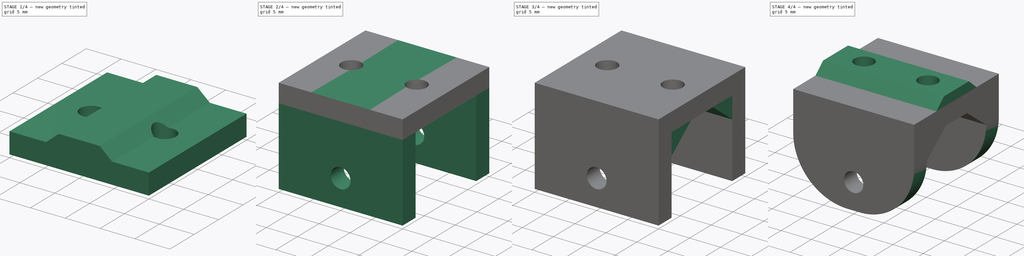
[diagram: build sequence overview — one tinted view per stage of 4, left to right]
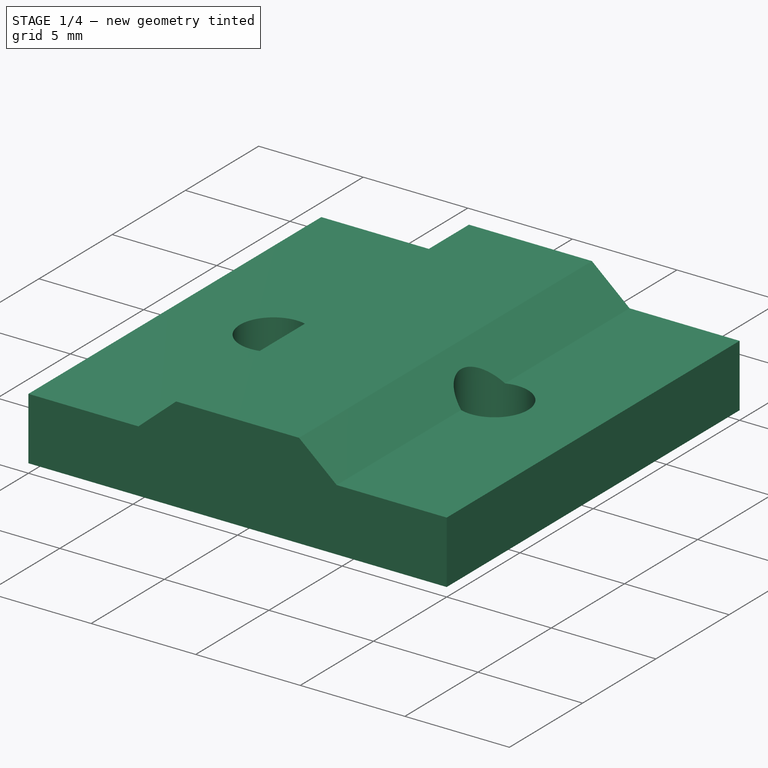
[diagram: stage 1 of 4 — iso view after this stage's code; geometry added in this stage tinted green]
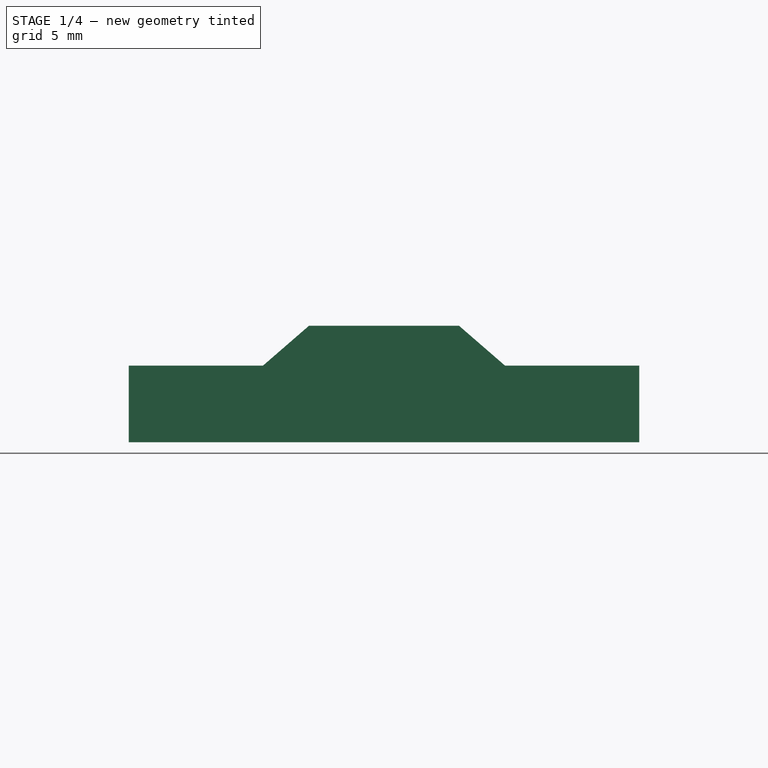
[diagram: stage 1 of 4 — front view after this stage's code; geometry added in this stage tinted green]
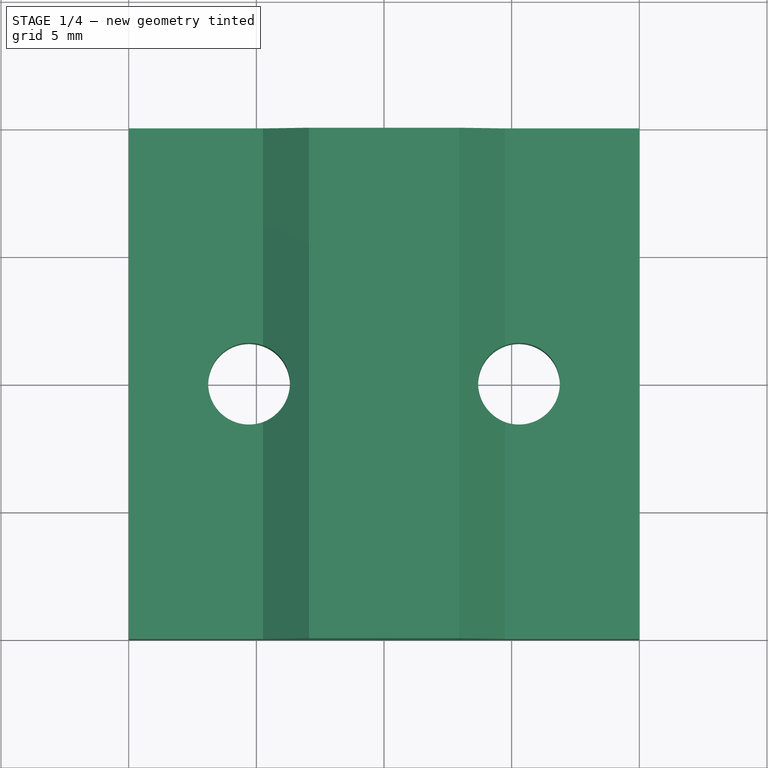
[diagram: stage 1 of 4 — top view after this stage's code; geometry added in this stage tinted green]
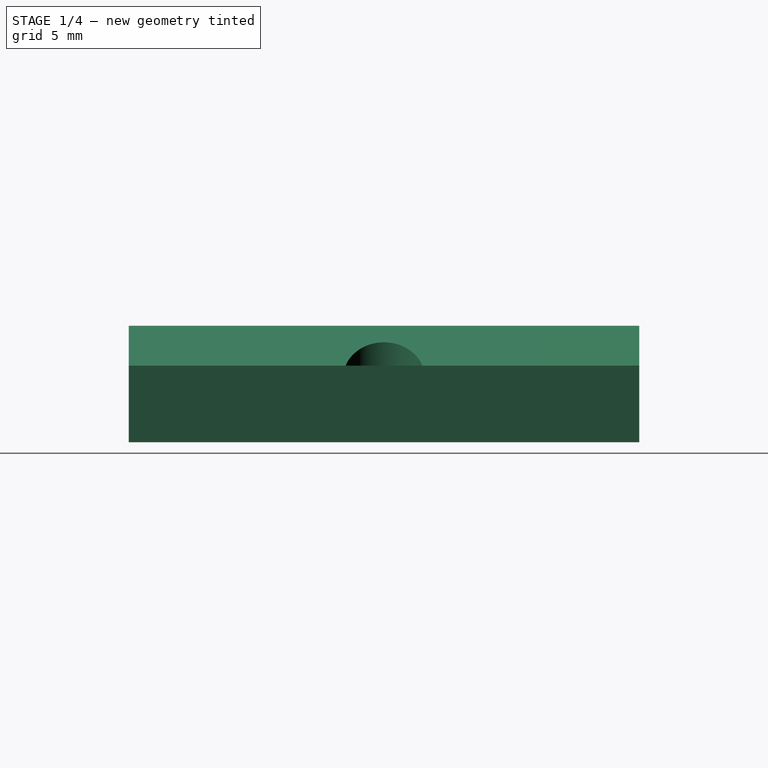
[diagram: stage 1 of 4 — right view after this stage's code; geometry added in this stage tinted green]
FCSTD DOCUMENT  (FreeCAD 0.20R29603 (Git))
Label: suporte-20-P2-amortecedor-lateral
License: All rights reserved
LicenseURL: http://en.wikipedia.org/wiki/All_rights_reserved
objects: Sketcher::SketchObject×10, PartDesign::Pocket×6, PartDesign::Pad×5, PartDesign::Fillet×1, PartDesign::Body×1
note: 35 computed .brp shape members not serialized (recipe doc carries the construction recipe); baked Part::Feature solids carry a one-line shape summary decoded from their .brp

FEATURE [Sketcher::SketchObject] Sketch
  FullyConstrained = true
  MapMode = 5
  Support = -> [XY_Plane]
  sketch-geometry (13):
    g0: LineSegment StartX=10 StartY=10 StartZ=0 EndX=-10 EndY=10 EndZ=0
    g1: LineSegment StartX=-10 StartY=10 StartZ=0 EndX=-10 EndY=-10 EndZ=0
    g2: LineSegment StartX=-10 StartY=-10 StartZ=0 EndX=10 EndY=-10 EndZ=0
    g3: LineSegment StartX=10 StartY=-10 StartZ=0 EndX=10 EndY=10 EndZ=0
    g4: Circle CenterX=0 CenterY=0 CenterZ=0 NormalX=0 NormalY=0 NormalZ=1 AngleXU=0 Radius=14.1421
    g5: Circle CenterX=0 CenterY=-5.286 CenterZ=0 NormalX=0 NormalY=0 NormalZ=1 AngleXU=0 Radius=1.6
    g6: Circle CenterX=0 CenterY=5.286 CenterZ=0 NormalX=0 NormalY=0 NormalZ=1 AngleXU=0 Radius=1.6
    g7: LineSegment StartX=0 StartY=5.286 StartZ=0 EndX=0 EndY=0 EndZ=0
    g8: LineSegment StartX=0 StartY=-5.286 StartZ=0 EndX=0 EndY=0 EndZ=0
    g9: Circle CenterX=-5.286 CenterY=0 CenterZ=0 NormalX=0 NormalY=0 NormalZ=1 AngleXU=0 Radius=1.6
    g10: Circle CenterX=5.286 CenterY=0 CenterZ=0 NormalX=0 NormalY=0 NormalZ=1 AngleXU=0 Radius=1.6
    g11: LineSegment StartX=-5.286 StartY=0 StartZ=0 EndX=0 EndY=0 EndZ=0
    g12: LineSegment StartX=5.286 StartY=0 StartZ=0 EndX=0 EndY=0 EndZ=0
  constraints (34):
    c: Coincident(g0,g1)
    c: Coincident(g1,g2)
    c: Coincident(g2,g3)
    c: Coincident(g3,g0)
    c: Equal(g0,g1)
    c: Equal(g0,g2)
    c: Equal(g0,g3)
    c: PointOnObject(g0,g4)
    c: PointOnObject(g1,g4)
    c: PointOnObject(g2,g4)
    c: PointOnObject(g3,g4)
    c: Coincident(g4,g-1)
    c: Horizontal(g0)
    c: DistanceY(g1,g1) = 20
    c: PointOnObject(g6,g-2)
    c: PointOnObject(g5,g-2)
    c: Coincident(g7,g6)
    c: Coincident(g8,g5)
    c: Coincident(g8,g7)
    c: Equal(g7,g8)
    c: Coincident(g7,g4)
    c: Equal(g6,g5)
    c: Radius(g6) = 1.6
    c: DistanceY(g5,g6) = 10.572
    c: Coincident(g11,g4)
    c: Coincident(g12,g10)
    c: Coincident(g12,g4)
    c: Coincident(g11,g9)
    c: Equal(g11,g12)
    c: Equal(g9,g10)
    c: Equal(g10,g6)
    c: Equal(g12,g7)
    c: Horizontal(g12)
    c: Horizontal(g11)
FEATURE [PartDesign::Pad] Pad
  Direction = (0,0,1)
  Length = 3
  Length2 = 10
  Profile = -> Sketch
  ReferenceAxis = -> Sketch [N_Axis]
  Type = 0
FEATURE [Sketcher::SketchObject] Sketch005
  FullyConstrained = false
  MapMode = 5
  Placement = pos=(0,10,0) rot=(0,0.707107,0.707107;3.14159rad)
  sketch-geometry (5):
    g0: LineSegment StartX=-4.25 StartY=0 StartZ=0 EndX=4.25 EndY=0 EndZ=0
    g1: LineSegment StartX=-4.25 StartY=0 StartZ=0 EndX=-4.25 EndY=-8.25 EndZ=0
    g2: LineSegment StartX=4.25 StartY=0 StartZ=0 EndX=4.25 EndY=-8.25 EndZ=0
    g3: ArcOfCircle CenterX=0 CenterY=-8.25 CenterZ=0 NormalX=0 NormalY=0 NormalZ=1 AngleXU=0 Radius=4.25 StartAngle=3.14159 EndAngle=6.28319
    g4: Circle CenterX=0 CenterY=-8.25 CenterZ=0 NormalX=0 NormalY=0 NormalZ=1 AngleXU=0 Radius=1.6
  constraints (12):
    c: Horizontal(g0)
    c: Vertical(g1)
    c: PointOnObject(g3,g-2)
    c: Tangent(g1,g3) = -1.5708
    c: Tangent(g3,g2) = 1.5708
    c: Vertical(g2)
    c: Coincident(g1,g0)
    c: Coincident(g2,g0)
    c: PointOnObject(g-1,g0)
    c: DistanceX(g0,g0) = 8.5
    c: Coincident(g4,g3)
    c: Radius(g4) = 1.6
FEATURE [Sketcher::SketchObject] Sketch001
  ExternalGeometry = -> [Pad]
  FullyConstrained = true
  MapMode = 5
  Placement = pos=(0,10,0) rot=(0,0.707107,0.707107;3.14159rad)
  Support = -> [Pad]
  sketch-geometry (5):
    g0: LineSegment StartX=0 StartY=3 StartZ=0 EndX=-4.74 EndY=3 EndZ=0
    g1: LineSegment StartX=-4.74 StartY=3 StartZ=0 EndX=-2.94 EndY=4.56 EndZ=0
    g2: LineSegment StartX=-2.94 StartY=4.56 StartZ=0 EndX=2.94 EndY=4.56 EndZ=0
    g3: LineSegment StartX=2.94 StartY=4.56 StartZ=0 EndX=4.74 EndY=3 EndZ=0
    g4: LineSegment StartX=4.74 StartY=3 StartZ=0 EndX=0 EndY=3 EndZ=0
  constraints (15):
    c: Horizontal(g0)
    c: Coincident(g0,g1)
    c: Coincident(g1,g2)
    c: Horizontal(g2)
    c: Coincident(g2,g3)
    c: Coincident(g3,g4)
    c: Coincident(g4,g0)
    c: Horizontal(g4)
    c: PointOnObject(g0,g-2)
    c: PointOnObject(g0,g-3)
    c: Equal(g3,g1)
    c: Equal(g0,g4)
    c: DistanceX(g0,g3) = 9.48
    c: DistanceX(g2,g2) = 5.88
    c: DistanceY(g3,g2) = 1.56
FEATURE [PartDesign::Pad] Pad001
  BaseFeature = -> Pad
  Direction = (0,1,-2e-16)
  Length = 10
  Length2 = 10
  Profile = -> Sketch001
  ReferenceAxis = -> Sketch001 [N_Axis]
  Reversed = true
  Type = 3
  UpToFace = -> Pad [Face3]
FEATURE [Sketcher::SketchObject] Sketch002
  ExternalGeometry = -> [Pad001]
  FullyConstrained = true
  MapMode = 5
  Placement = pos=(0,0,0) rot=(1,0,0;3.14159rad)
  Support = -> [Pad001]
  sketch-geometry (2):
    g0: Circle CenterX=-5.286 CenterY=0 CenterZ=0 NormalX=0 NormalY=0 NormalZ=1 AngleXU=0 Radius=1.6
    g1: Circle CenterX=5.286 CenterY=0 CenterZ=0 NormalX=0 NormalY=0 NormalZ=1 AngleXU=0 Radius=1.6
  constraints (4):
    c: Coincident(g0,g-3)
    c: Equal(g1,g-4)
    c: Equal(g-4,g0)
    c: Coincident(g1,g-4)
FEATURE [PartDesign::Pocket] Pocket
  BaseFeature = -> Pad001
  Direction = (0,0,1)
  Length = 5
  Length2 = 5
  Profile = -> Sketch002
  ReferenceAxis = -> Sketch002 [N_Axis]
  Type = 1
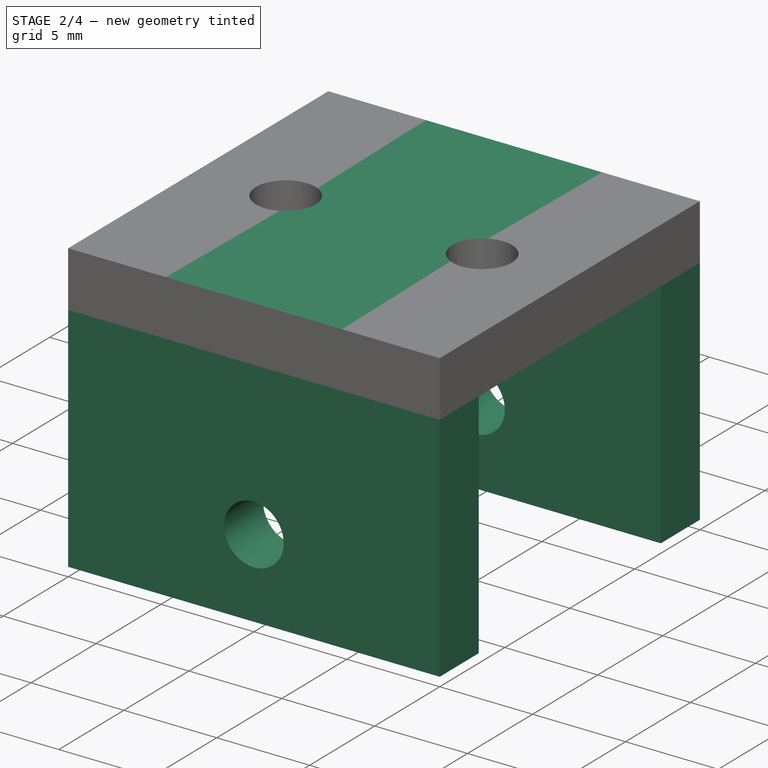
[diagram: stage 2 of 4 — iso view after this stage's code; geometry added in this stage tinted green]
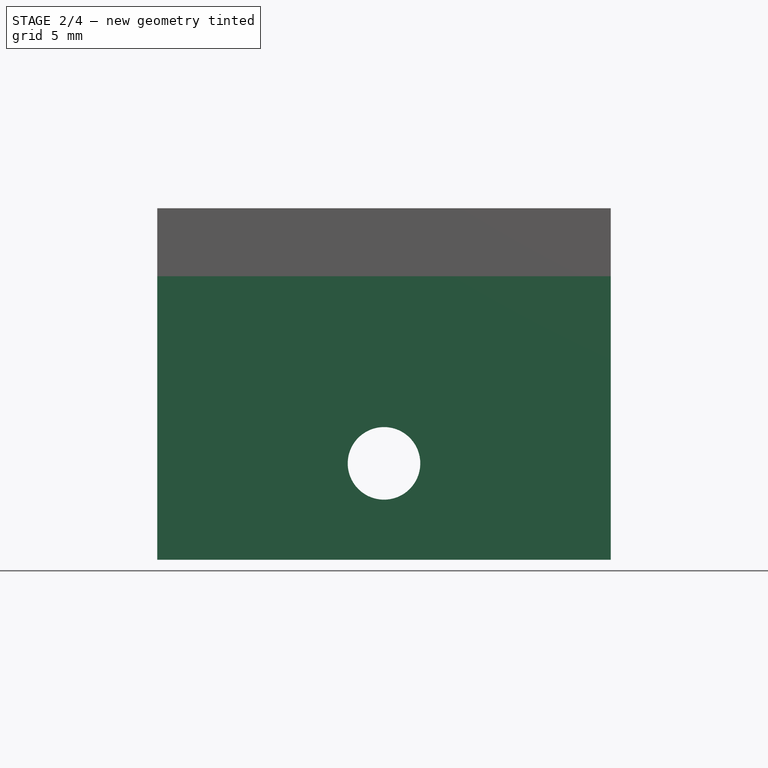
[diagram: stage 2 of 4 — front view after this stage's code; geometry added in this stage tinted green]
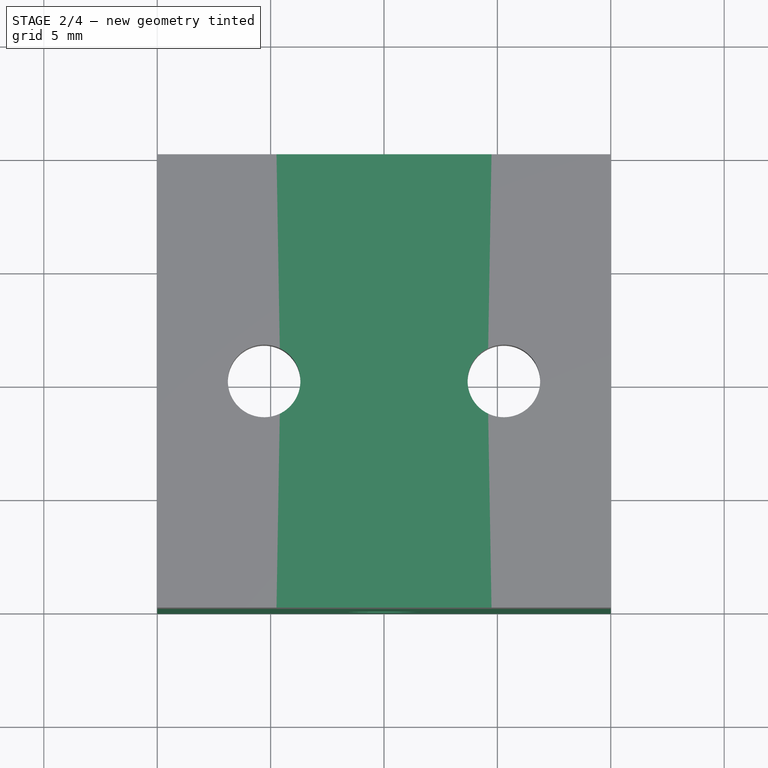
[diagram: stage 2 of 4 — top view after this stage's code; geometry added in this stage tinted green]
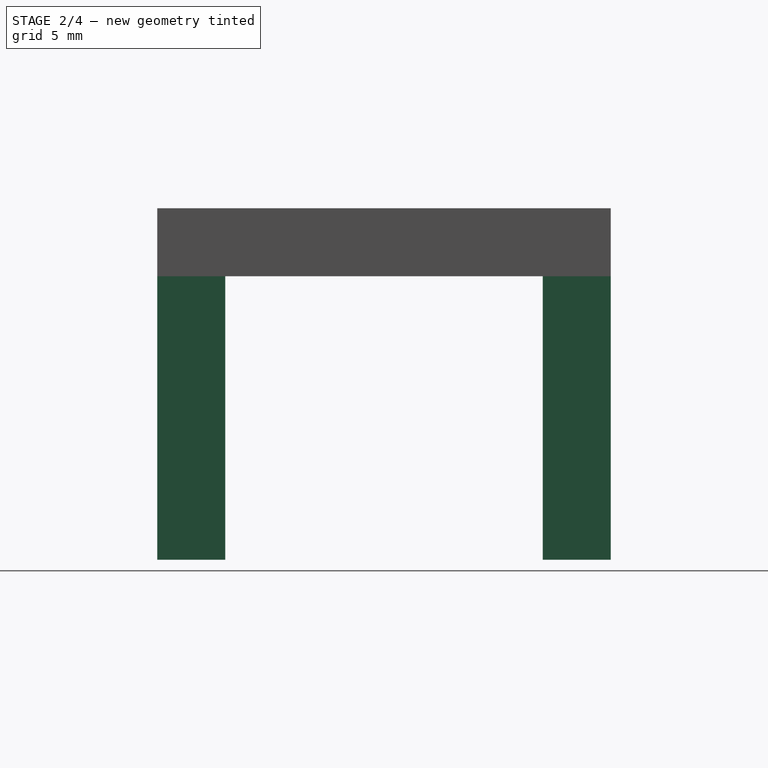
[diagram: stage 2 of 4 — right view after this stage's code; geometry added in this stage tinted green]
FEATURE [Sketcher::SketchObject] Sketch003
  ExternalGeometry = -> [Pocket]
  FullyConstrained = true
  MapMode = 5
  Placement = pos=(0,0,0) rot=(1,0,0;3.14159rad)
  Support = -> [Pocket]
  sketch-geometry (15):
    g0: LineSegment StartX=4 StartY=2.3 StartZ=0 EndX=-4 EndY=2.3 EndZ=0
    g1: LineSegment StartX=-4 StartY=2.3 StartZ=0 EndX=-4 EndY=-2.3 EndZ=0
    g2: LineSegment StartX=-4 StartY=-2.3 StartZ=0 EndX=4 EndY=-2.3 EndZ=0
    g3: LineSegment StartX=4 StartY=-2.3 StartZ=0 EndX=4 EndY=2.3 EndZ=0
    g4: LineSegment StartX=4 StartY=2.3 StartZ=0 EndX=-4 EndY=-2.3 EndZ=0
    g5: LineSegment StartX=-4 StartY=2.3 StartZ=0 EndX=4 EndY=-2.3 EndZ=0
    g6: Circle CenterX=-5.286 CenterY=0 CenterZ=0 NormalX=0 NormalY=0 NormalZ=1 AngleXU=0 Radius=2.75
    g7: LineSegment StartX=-10 StartY=10 StartZ=0 EndX=10 EndY=10 EndZ=0
    g8: LineSegment StartX=10 StartY=10 StartZ=0 EndX=10 EndY=7 EndZ=0
    g9: LineSegment StartX=10 StartY=7 StartZ=0 EndX=-10 EndY=7 EndZ=0
    g10: LineSegment StartX=-10 StartY=7 StartZ=0 EndX=-10 EndY=10 EndZ=0
    g11: LineSegment StartX=-10 StartY=-7 StartZ=0 EndX=10 EndY=-7 EndZ=0
    g12: LineSegment StartX=10 StartY=-7 StartZ=0 EndX=10 EndY=-10 EndZ=0
    g13: LineSegment StartX=10 StartY=-10 StartZ=0 EndX=-10 EndY=-10 EndZ=0
    g14: LineSegment StartX=-10 StartY=-10 StartZ=0 EndX=-10 EndY=-7 EndZ=0
  constraints (40):
    c: Coincident(g0,g1)
    c: Coincident(g1,g2)
    c: Coincident(g2,g3)
    c: Coincident(g3,g0)
    c: Horizontal(g0)
    c: Horizontal(g2)
    c: Vertical(g1)
    c: Vertical(g3)
    c: DistanceY(g1,g1) = 4.6
    c: DistanceX(g0,g0) = 8
    c: Coincident(g4,g0)
    c: Coincident(g4,g1)
    c: Coincident(g5,g0)
    c: Coincident(g5,g2)
    c: PointOnObject(g-1,g5)
    c: PointOnObject(g-1,g4)
    c: Coincident(g6,g-3)
    c: Diameter(g6) = 5.5
    c: Coincident(g7,g8)
    c: Coincident(g8,g9)
    c: Coincident(g9,g10)
    c: Coincident(g10,g7)
    c: Horizontal(g7)
    c: Horizontal(g9)
    c: Vertical(g8)
    c: Vertical(g10)
    c: Coincident(g11,g12)
    c: Coincident(g12,g13)
    c: Coincident(g13,g14)
    c: Coincident(g14,g11)
    c: Horizontal(g11)
    c: Horizontal(g13)
    c: Vertical(g12)
    c: Vertical(g14)
    c: Coincident(g7,g-5)
    c: Vertical(g9,g-5)
    c: Coincident(g13,g-4)
    c: Vertical(g11,g-4)
    c: Equal(g14,g10)
    c: DistanceY(g8,g8) = 3
FEATURE [PartDesign::Pad] Pad002
  BaseFeature = -> Pocket
  Direction = (0,0,-1)
  Length = 12.5
  Length2 = 10
  Profile = -> Sketch003
  ReferenceAxis = -> Sketch003 [N_Axis]
  Type = 0
FEATURE [PartDesign::Pocket] Pocket002
  BaseFeature = -> Pad002
  Direction = (0,-1,2e-16)
  Length = 5
  Length2 = 5
  Profile = -> Sketch005
  ReferenceAxis = -> Sketch005 [N_Axis]
  Type = 1
FEATURE [PartDesign::Pocket] Pocket003
  BaseFeature = -> Pocket002
  Direction = (0,1,0)
  Length = 5
  Length2 = 5
  Profile = -> Pocket002 [Face22]
  Type = 1
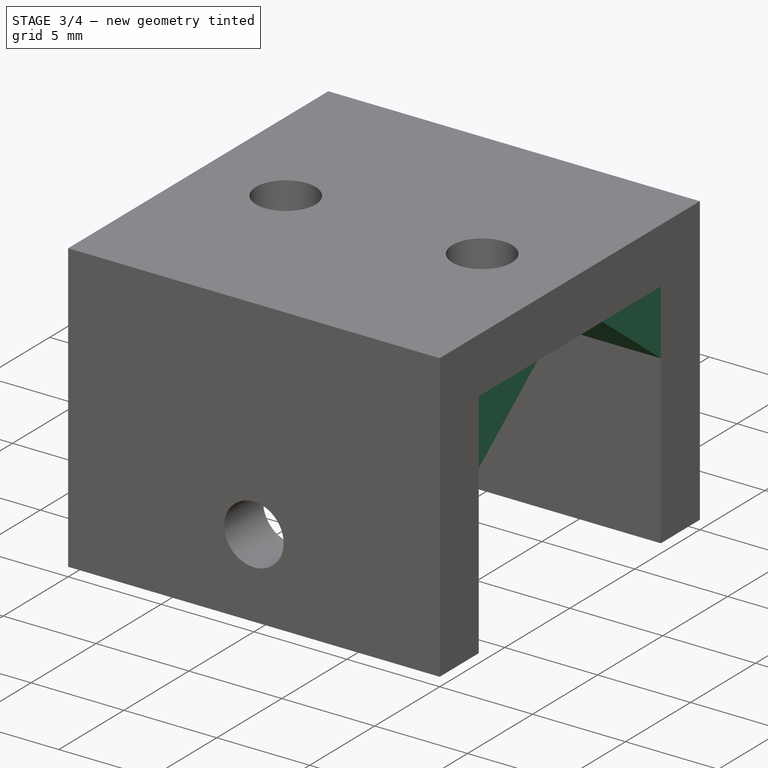
[diagram: stage 3 of 4 — iso view after this stage's code; geometry added in this stage tinted green]
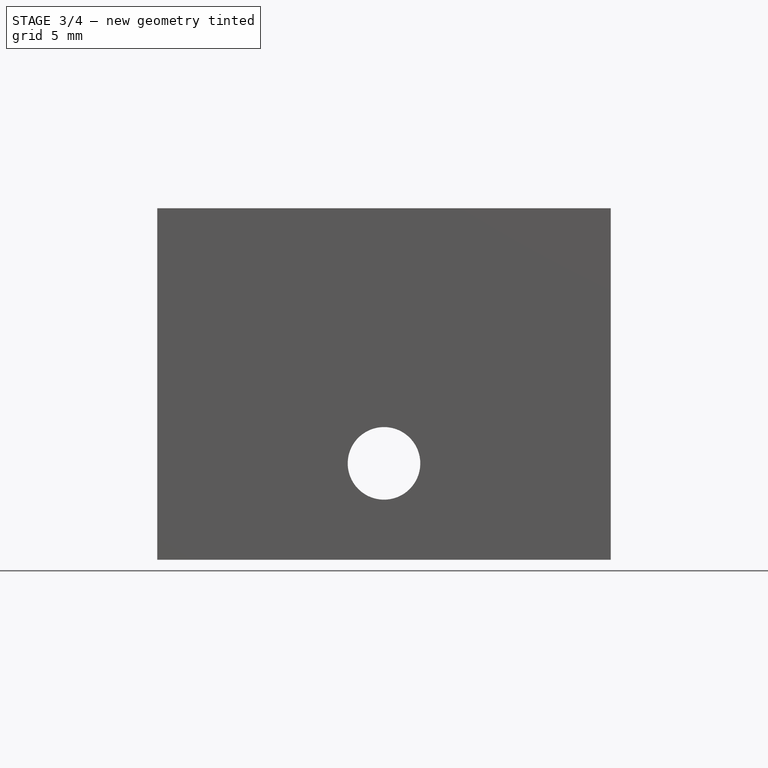
[diagram: stage 3 of 4 — front view after this stage's code; geometry added in this stage tinted green]
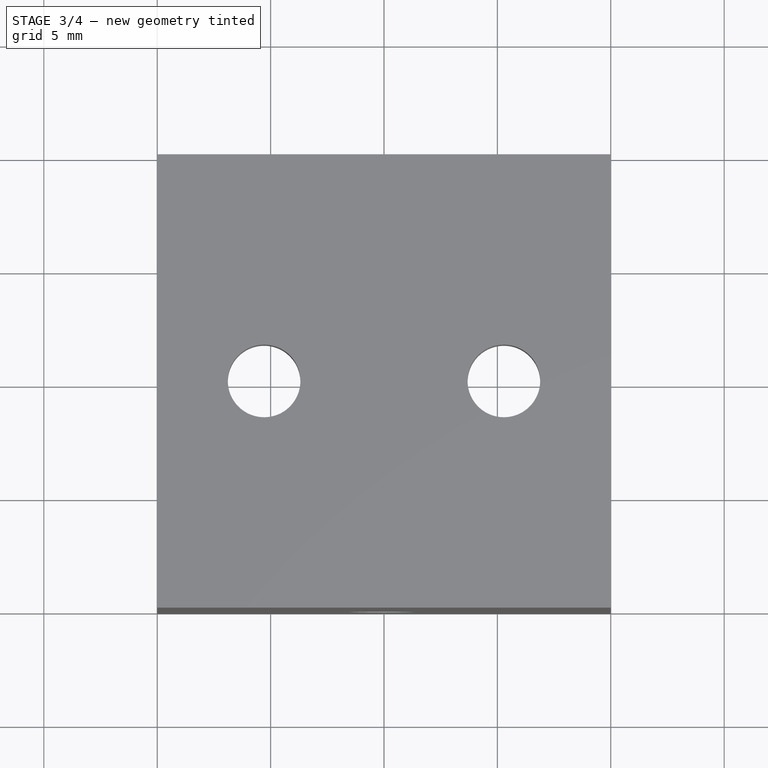
[diagram: stage 3 of 4 — top view after this stage's code; geometry added in this stage tinted green]
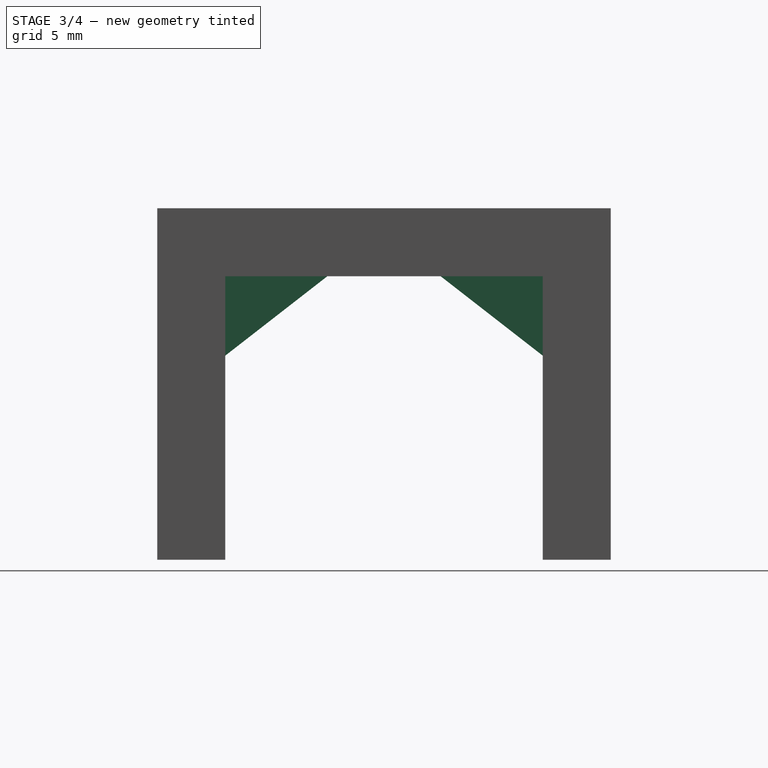
[diagram: stage 3 of 4 — right view after this stage's code; geometry added in this stage tinted green]
FEATURE [Sketcher::SketchObject] Sketch006
  ExternalGeometry = -> [Pocket003]
  FullyConstrained = true
  MapMode = 5
  Placement = pos=(0,0,0) rot=(1,0,0;3.14159rad)
  Support = -> [Pocket003]
  sketch-geometry (8):
    g0: LineSegment StartX=-10 StartY=7 StartZ=0 EndX=10 EndY=7 EndZ=0
    g1: LineSegment StartX=10 StartY=7 StartZ=0 EndX=10 EndY=2.5 EndZ=0
    g2: LineSegment StartX=10 StartY=2.5 StartZ=0 EndX=-10 EndY=2.5 EndZ=0
    g3: LineSegment StartX=-10 StartY=2.5 StartZ=0 EndX=-10 EndY=7 EndZ=0
    g4: LineSegment StartX=-10 StartY=-7 StartZ=0 EndX=10 EndY=-7 EndZ=0
    g5: LineSegment StartX=10 StartY=-7 StartZ=0 EndX=10 EndY=-2.5 EndZ=0
    g6: LineSegment StartX=10 StartY=-2.5 StartZ=0 EndX=-10 EndY=-2.5 EndZ=0
    g7: LineSegment StartX=-10 StartY=-2.5 StartZ=0 EndX=-10 EndY=-7 EndZ=0
  constraints (22):
    c: Coincident(g0,g1)
    c: Coincident(g1,g2)
    c: Coincident(g2,g3)
    c: Coincident(g3,g0)
    c: Horizontal(g0)
    c: Horizontal(g2)
    c: Vertical(g1)
    c: Vertical(g3)
    c: Coincident(g0,g-3)
    c: Coincident(g4,g5)
    c: Coincident(g5,g6)
    c: Coincident(g6,g7)
    c: Coincident(g7,g4)
    c: Horizontal(g4)
    c: Horizontal(g6)
    c: Vertical(g5)
    c: Vertical(g7)
    c: Coincident(g4,g-4)
    c: Vertical(g4,g-4)
    c: Vertical(g-4,g1)
    c: Equal(g3,g7)
    c: DistanceY(g3,g3) = 4.5
FEATURE [PartDesign::Pad] Pad003
  BaseFeature = -> Pocket003
  Direction = (0,0,-1)
  Length = 3.5
  Length2 = 10
  Profile = -> Sketch006
  ReferenceAxis = -> Sketch006 [N_Axis]
  Type = 0
FEATURE [Sketcher::SketchObject] Sketch007
  ExternalGeometry = -> [Pad003]
  FullyConstrained = true
  MapMode = 5
  Placement = pos=(-10,0,0) rot=(0.57735,-0.57735,-0.57735;2.0944rad)
  Support = -> [Pad003]
  sketch-geometry (6):
    g0: LineSegment StartX=-2.5 StartY=0 StartZ=0 EndX=-7 EndY=-3.5 EndZ=0
    g1: LineSegment StartX=-7 StartY=-3.5 StartZ=0 EndX=-2.5 EndY=-3.5 EndZ=0
    g2: LineSegment StartX=-2.5 StartY=-3.5 StartZ=0 EndX=-2.5 EndY=0 EndZ=0
    g3: LineSegment StartX=7 StartY=-3.5 StartZ=0 EndX=2.5 EndY=0 EndZ=0
    g4: LineSegment StartX=2.5 StartY=0 StartZ=0 EndX=2.5 EndY=-3.5 EndZ=0
    g5: LineSegment StartX=2.5 StartY=-3.5 StartZ=0 EndX=7 EndY=-3.5 EndZ=0
  constraints (12):
    c: Coincident(g0,g1)
    c: Coincident(g1,g2)
    c: Coincident(g2,g0)
    c: Coincident(g3,g4)
    c: Coincident(g4,g5)
    c: Coincident(g5,g3)
    c: Coincident(g3,g-4)
    c: Coincident(g4,g-4)
    c: Coincident(g3,g-3)
    c: Coincident(g1,g-6)
    c: Coincident(g0,g-5)
    c: Coincident(g0,g-6)
FEATURE [PartDesign::Pocket] Pocket004
  BaseFeature = -> Pad003
  Direction = (1,0,0)
  Length = 5
  Length2 = 5
  Profile = -> Sketch007
  ReferenceAxis = -> Sketch007 [N_Axis]
  Type = 1
FEATURE [Sketcher::SketchObject] Sketch008
  ExternalGeometry = -> [Pocket004]
  FullyConstrained = true
  MapMode = 5
  Placement = pos=(0,0,0) rot=(1,0,0;3.14159rad)
  Support = -> [Pocket004]
  sketch-geometry (2):
    g0: Circle CenterX=-5.286 CenterY=0 CenterZ=0 NormalX=0 NormalY=0 NormalZ=1 AngleXU=0 Radius=2.75
    g1: Circle CenterX=5.286 CenterY=0 CenterZ=0 NormalX=0 NormalY=0 NormalZ=1 AngleXU=0 Radius=2.75
  constraints (4):
    c: Coincident(g0,g-4)
    c: Coincident(g1,g-3)
    c: Equal(g1,g0)
    c: Diameter(g0) = 5.5
FEATURE [PartDesign::Pocket] Pocket005
  BaseFeature = -> Pocket004
  Direction = (0,0,1)
  Length = 5
  Length2 = 5
  Profile = -> Sketch008
  ReferenceAxis = -> Sketch008 [N_Axis]
  Reversed = true
  Type = 1
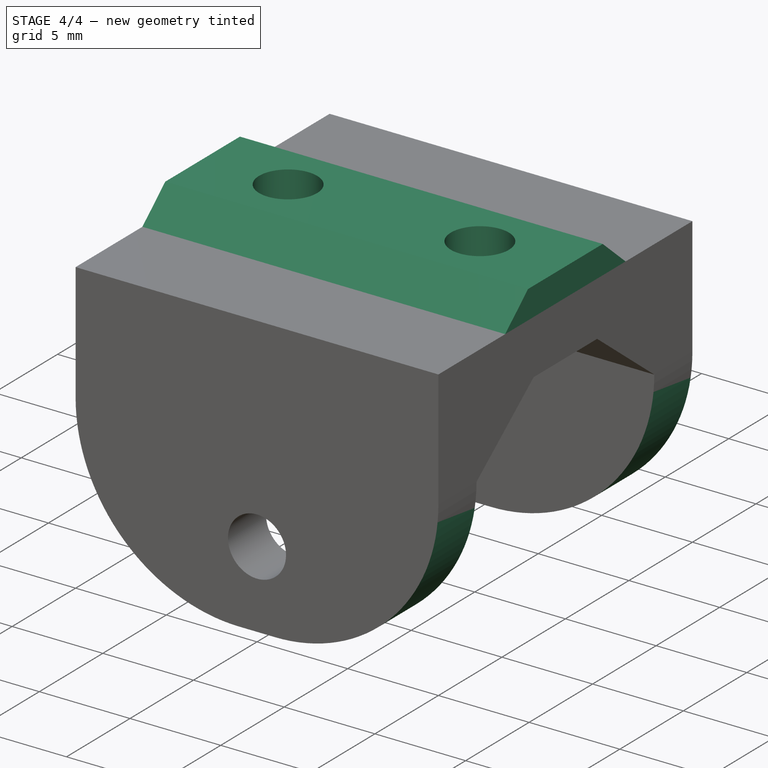
[diagram: stage 4 of 4 — iso view after this stage's code; geometry added in this stage tinted green]
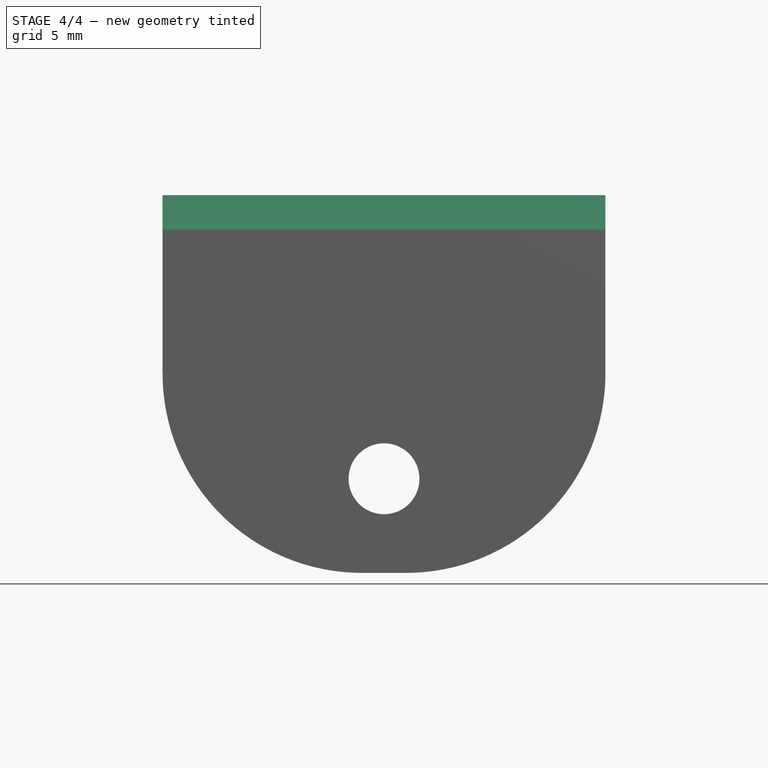
[diagram: stage 4 of 4 — front view after this stage's code; geometry added in this stage tinted green]
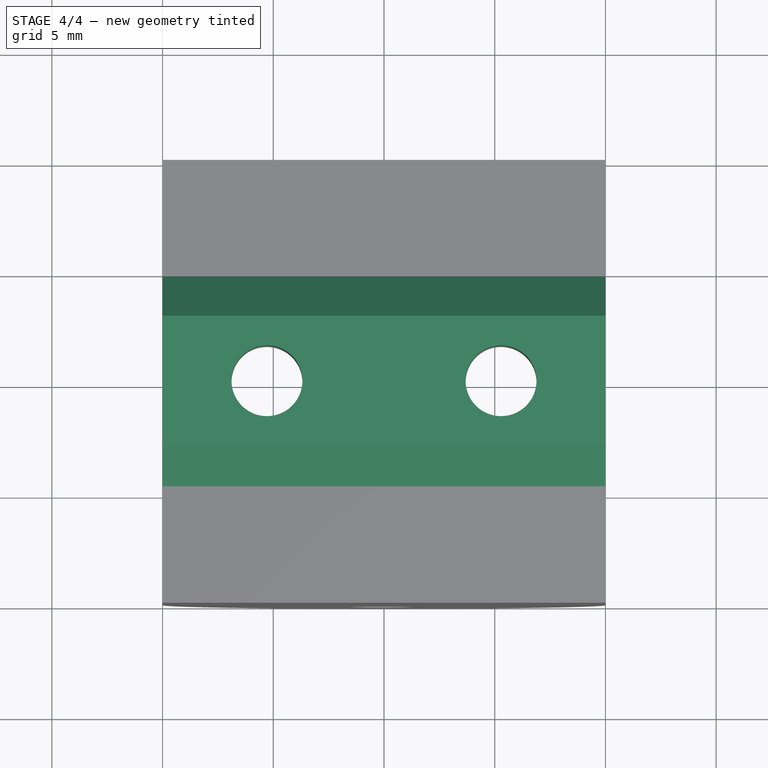
[diagram: stage 4 of 4 — top view after this stage's code; geometry added in this stage tinted green]
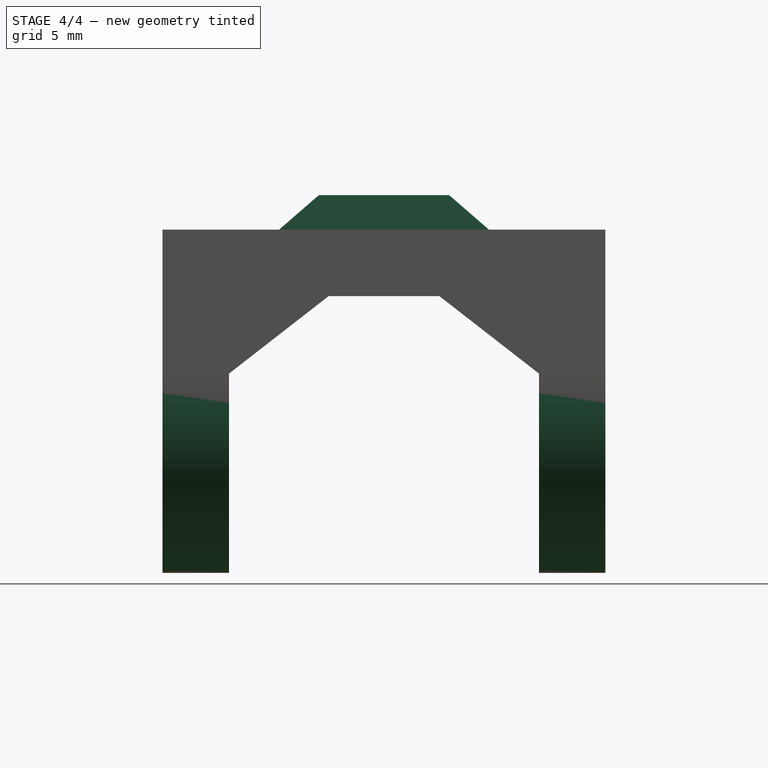
[diagram: stage 4 of 4 — right view after this stage's code; geometry added in this stage tinted green]
FEATURE [Sketcher::SketchObject] Sketch009
  ExternalGeometry = -> [Pocket005]
  FullyConstrained = true
  MapMode = 5
  Placement = pos=(-10,0,0) rot=(0.57735,-0.57735,-0.57735;2.0944rad)
  Support = -> [Pocket005]
  sketch-geometry (5):
    g0: LineSegment StartX=0 StartY=3 StartZ=0 EndX=-4.74 EndY=3 EndZ=0
    g1: LineSegment StartX=-4.74 StartY=3 StartZ=0 EndX=-2.94 EndY=4.56 EndZ=0
    g2: LineSegment StartX=-2.94 StartY=4.56 StartZ=0 EndX=2.94 EndY=4.56 EndZ=0
    g3: LineSegment StartX=2.94 StartY=4.56 StartZ=0 EndX=4.74 EndY=3 EndZ=0
    g4: LineSegment StartX=4.74 StartY=3 StartZ=0 EndX=0 EndY=3 EndZ=0
  constraints (15):
    c: PointOnObject(g0,g-2)
    c: Coincident(g0,g1)
    c: Coincident(g1,g2)
    c: Horizontal(g2)
    c: Coincident(g2,g3)
    c: Coincident(g3,g4)
    c: Coincident(g4,g0)
    c: PointOnObject(g0,g-3)
    c: Equal(g0,g4)
    c: Horizontal(g0)
    c: Horizontal(g4)
    c: Equal(g1,g3)
    c: DistanceY(g0,g1) = 1.56
    c: DistanceX(g2,g2) = 5.88
    c: DistanceX(g0,g3) = 9.48
FEATURE [PartDesign::Pad] Pad004
  BaseFeature = -> Pocket005
  Direction = (-1,0,0)
  Length = 10
  Length2 = 10
  Profile = -> Sketch009
  ReferenceAxis = -> Sketch009 [N_Axis]
  Reversed = true
  Type = 3
  UpToFace = -> Pocket005 [Face2]
FEATURE [Sketcher::SketchObject] Sketch010
  ExternalGeometry = -> [Pad004]
  FullyConstrained = true
  MapMode = 5
  Placement = pos=(0,0,4.56) rot=(0,0,1;0rad)
  Support = -> [Pad004]
  sketch-geometry (2):
    g0: Circle CenterX=5.286 CenterY=0 CenterZ=0 NormalX=0 NormalY=0 NormalZ=1 AngleXU=0 Radius=1.6
    g1: Circle CenterX=-5.286 CenterY=0 CenterZ=0 NormalX=0 NormalY=0 NormalZ=1 AngleXU=0 Radius=1.6
  constraints (4):
    c: Coincident(g0,g-3)
    c: Coincident(g1,g-4)
    c: Equal(g-4,g1)
    c: Equal(g0,g-3)
FEATURE [PartDesign::Pocket] Pocket006
  BaseFeature = -> Pad004
  Direction = (0,0,-1)
  Length = 5
  Length2 = 5
  Profile = -> Sketch010
  ReferenceAxis = -> Sketch010 [N_Axis]
  Type = 1
FEATURE [PartDesign::Fillet] Fillet
  Base = -> Pocket006 [Edge73,Edge56,Edge64,Edge47]
  BaseFeature = -> Pocket006
  Radius = 9
  SupportTransform = false
  UseAllEdges = false
FEATURE [PartDesign::Body] Body
  Group = -> [Sketch,Pad,Sketch001,Pad001,Sketch002,Pocket,Sketch003,Pad002,Sketch005,Pocket002,Pocket003,Sketch006,Pad003,Sketch007,Pocket004,Sketch008,Pocket005,Sketch009,Pad004,Sketch010,Pocket006,Fillet]
  Origin = -> Origin
  Tip = -> Fillet
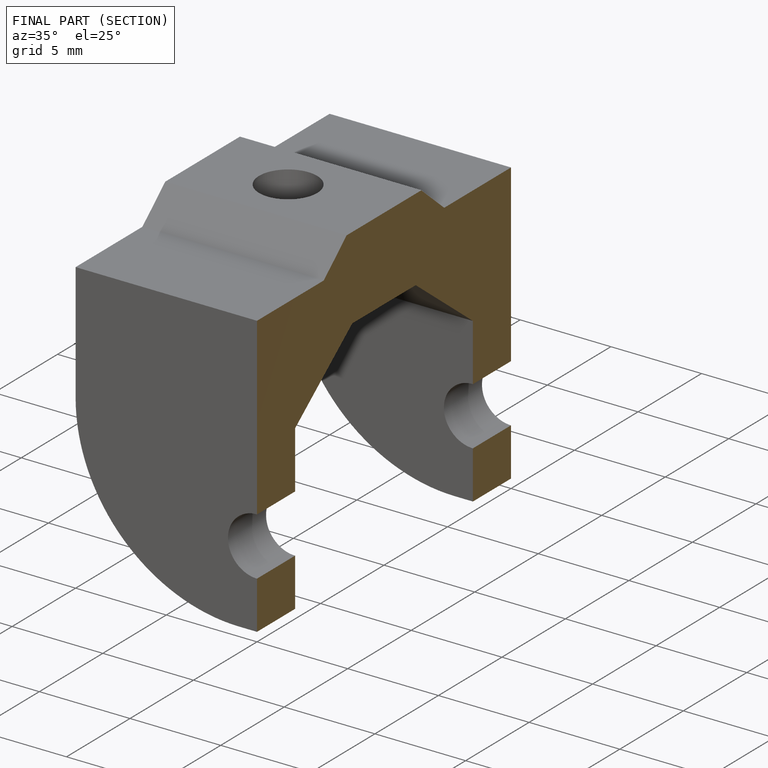
[diagram: finished part — half-section view (interior)]
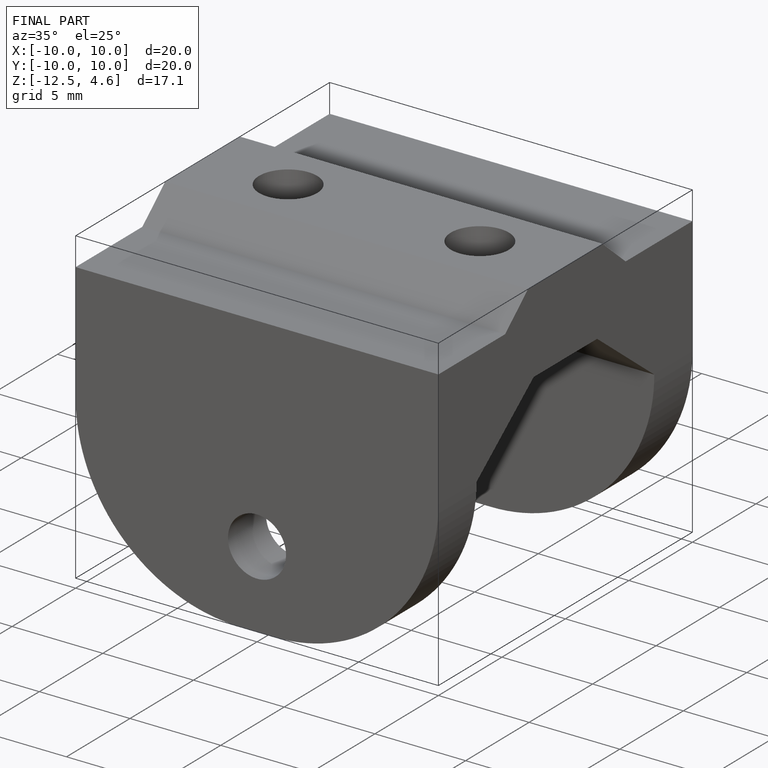
[diagram: finished part — iso view with bounding-box wireframe]
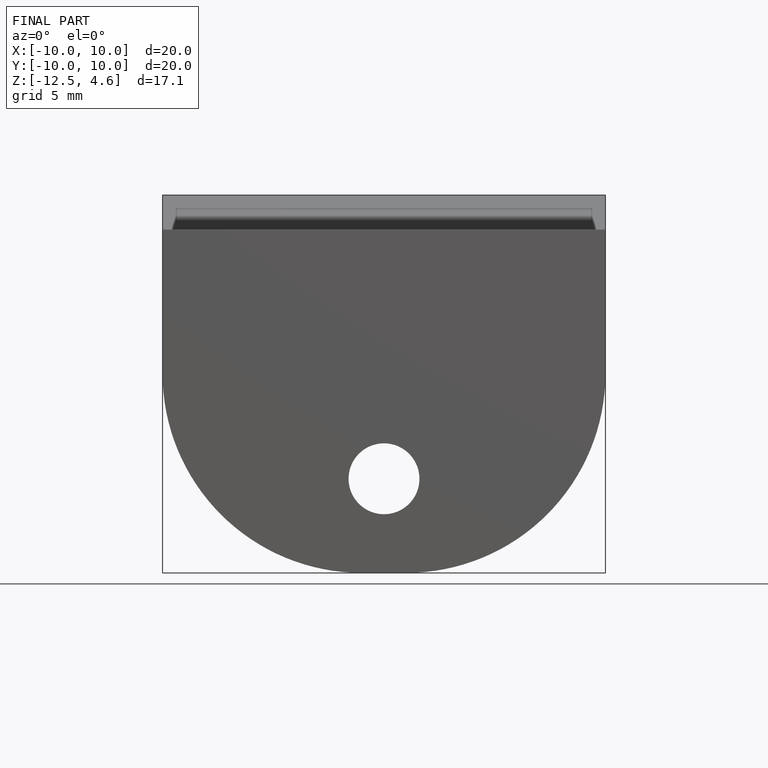
[diagram: finished part — front view with bounding-box wireframe]
